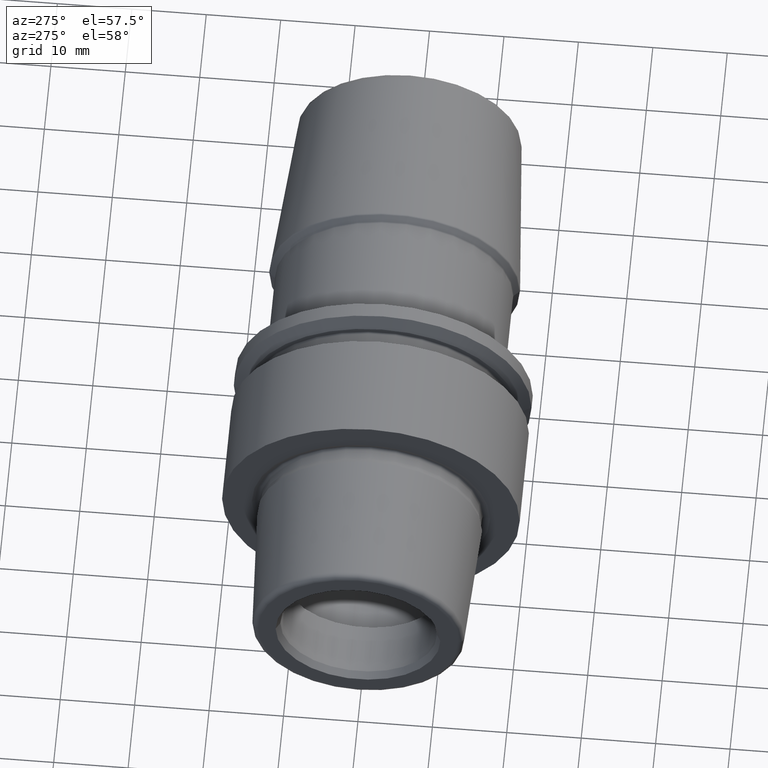
[diagram: clean part render]
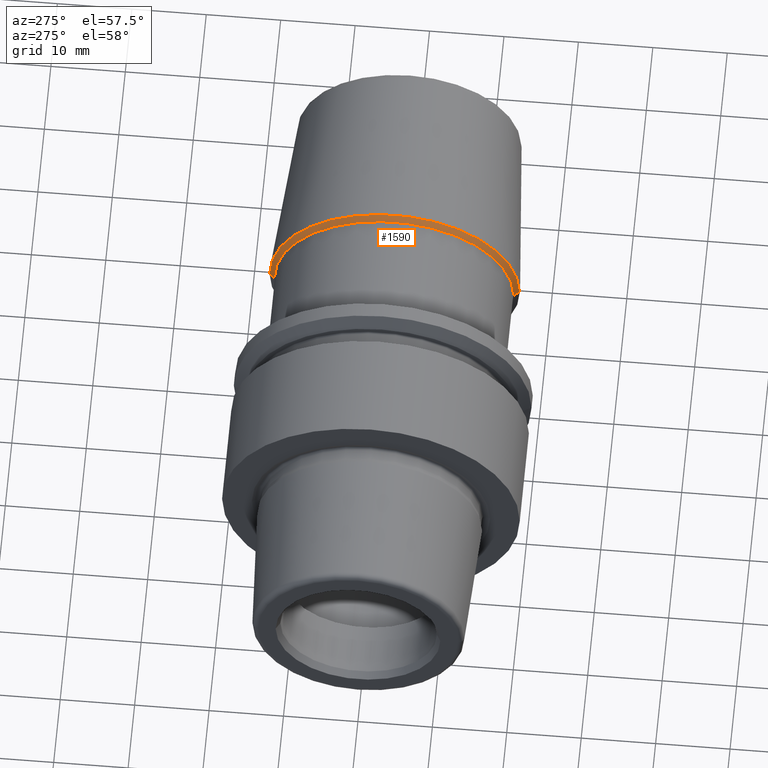
[diagram: same view with one face highlighted and labeled with its STEP entity id]
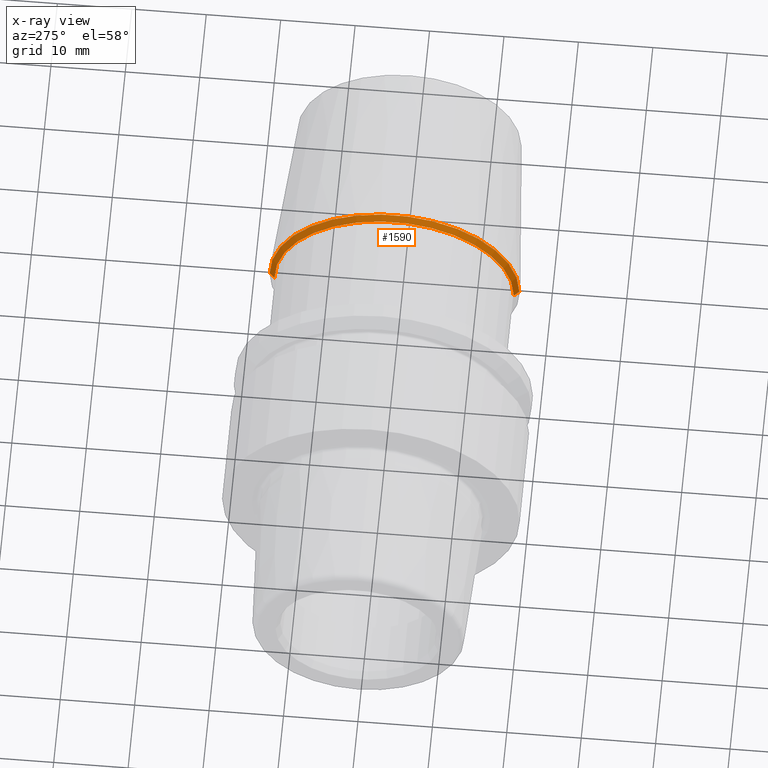
[diagram: x-ray of the same camera — body ghosted, the highlighted face saturated]
A machine part, auxiliary view. The second image highlights one B-rep face of the part: STEP entity #1590.
The next image is the same camera in x-ray: the body ghosted, the highlighted face saturated — about 0% of this face is hidden behind the body in this view.
In plain terms, the highlighted conical surface has half-angle 45 deg.
Its self-contained STEP definition (entity closure, byte-faithful):
#522=CARTESIAN_POINT('',(3.621632503587E1,0.E0,0.E0));
#523=DIRECTION('',(-1.E0,0.E0,0.E0));
#524=DIRECTION('',(0.E0,-1.E0,0.E0));
#525=AXIS2_PLACEMENT_3D('',#522,#523,#524);
#527=CARTESIAN_POINT('',(3.553786796564E1,0.E0,0.E0));
#528=DIRECTION('',(1.E0,0.E0,0.E0));
#529=DIRECTION('',(0.E0,1.E0,0.E0));
#530=AXIS2_PLACEMENT_3D('',#527,#528,#529);
#623=DIRECTION('',(-7.071067811865E-1,-7.071067811865E-1,1.884997687309E-13));
#624=VECTOR('',#623,9.594831902050E-1);
#625=CARTESIAN_POINT('',(3.621632503587E1,1.676632503587E1,
-2.293689224240E-13));
#626=LINE('',#625,#624);
#632=DIRECTION('',(-7.071067811865E-1,7.071067811865E-1,-1.902668604017E-13));
#633=VECTOR('',#632,9.594831902050E-1);
#634=CARTESIAN_POINT('',(3.621632503587E1,-1.676632503587E1,
2.251005504342E-13));
#635=LINE('',#634,#633);
#776=CARTESIAN_POINT('',(3.553786796564E1,1.608786796564E1,0.E0));
#777=CARTESIAN_POINT('',(3.553786796564E1,-1.608786796564E1,0.E0));
#778=VERTEX_POINT('',#776);
#779=VERTEX_POINT('',#777);
#780=CARTESIAN_POINT('',(3.621632503587E1,-1.676632503587E1,0.E0));
#781=CARTESIAN_POINT('',(3.621632503587E1,1.676632503587E1,0.E0));
#782=VERTEX_POINT('',#780);
#783=VERTEX_POINT('',#781);
#1576=CARTESIAN_POINT('',(3.587709650076E1,0.E0,0.E0));
#1577=DIRECTION('',(1.E0,0.E0,0.E0));
#1578=DIRECTION('',(0.E0,-1.E0,0.E0));
#1579=AXIS2_PLACEMENT_3D('',#1576,#1577,#1578);
#1580=CONICAL_SURFACE('',#1579,1.642709650076E1,4.5E1);
#1582=ORIENTED_EDGE('',*,*,#1581,.F.);
#1584=ORIENTED_EDGE('',*,*,#1583,.T.);
#1585=ORIENTED_EDGE('',*,*,#1570,.F.);
#1587=ORIENTED_EDGE('',*,*,#1586,.F.);
#1588=EDGE_LOOP('',(#1582,#1584,#1585,#1587));
#1589=FACE_OUTER_BOUND('',#1588,.F.);
#1590=ADVANCED_FACE('',(#1589),#1580,.T.);
#526=CIRCLE('',#525,1.676632503587E1);
#531=CIRCLE('',#530,1.608786796564E1);
#1570=EDGE_CURVE('',#778,#779,#531,.T.);
#1581=EDGE_CURVE('',#782,#783,#526,.T.);
#1583=EDGE_CURVE('',#782,#779,#635,.T.);
#1586=EDGE_CURVE('',#783,#778,#626,.T.);